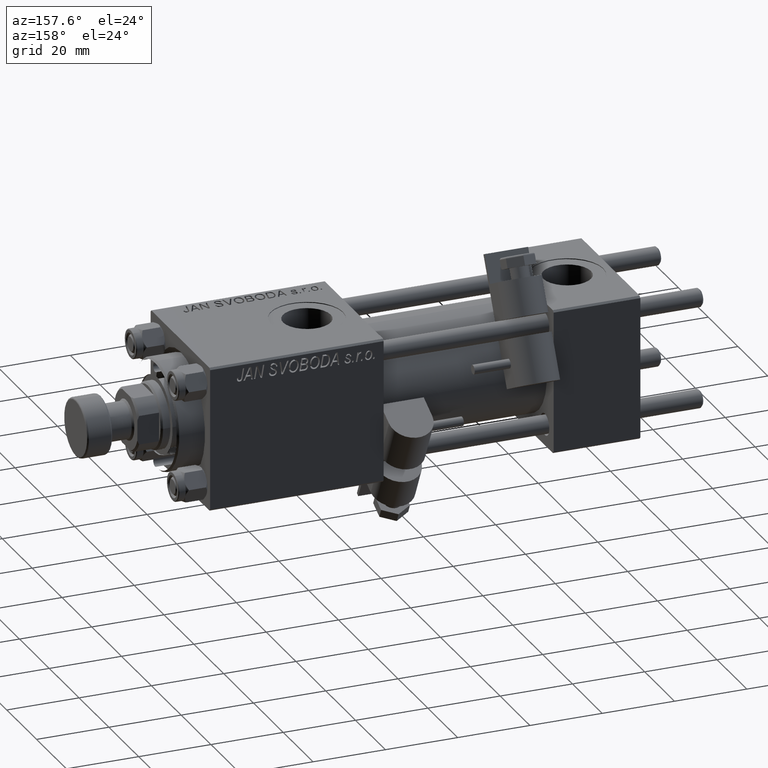
[diagram: clean part render]
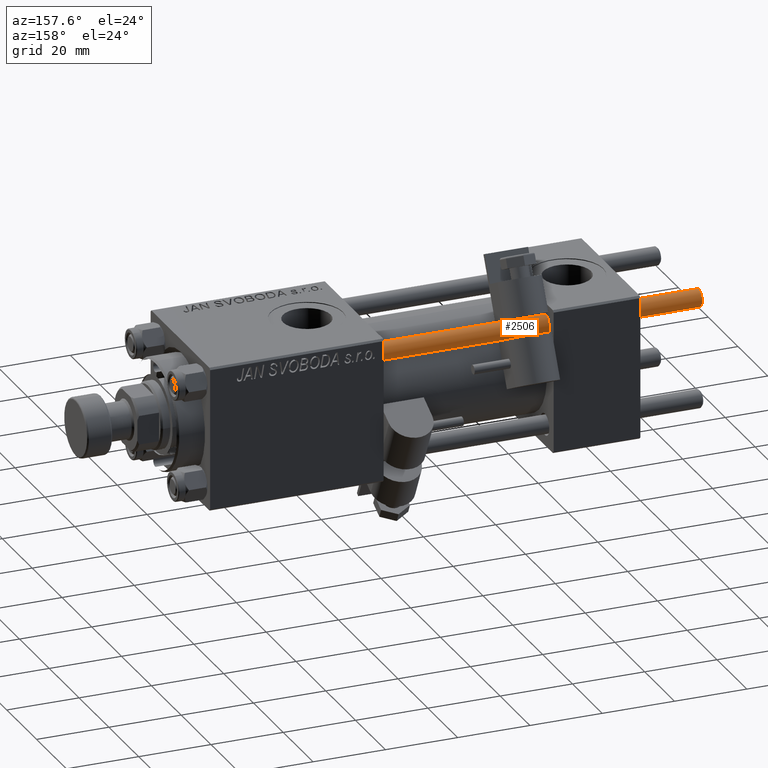
[diagram: same view with one face highlighted and labeled with its STEP entity id]
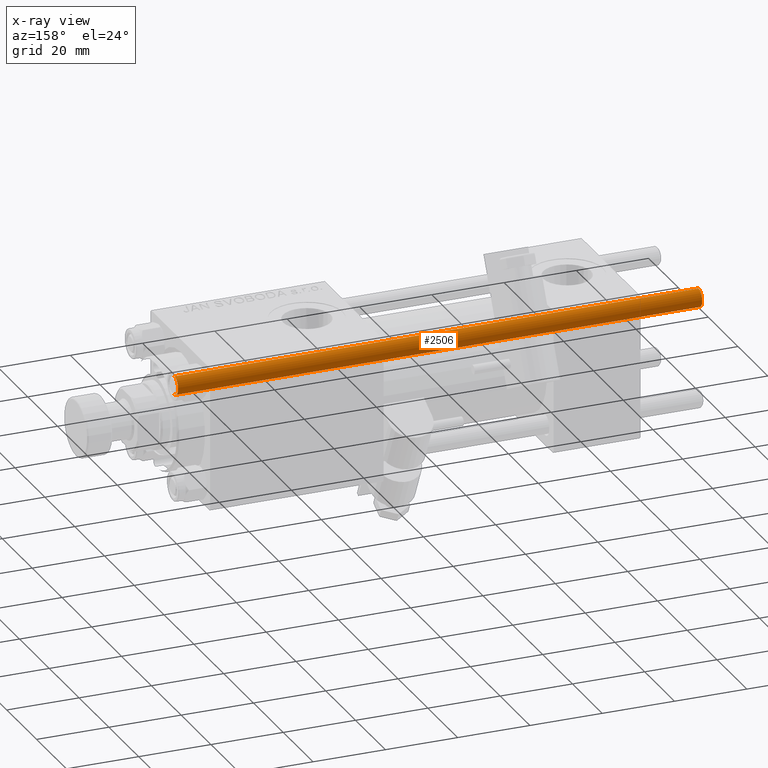
[diagram: x-ray of the same camera — body ghosted, the highlighted face saturated]
A machine part, auxiliary view. The second image highlights one B-rep face of the part: STEP entity #2506.
The next image is the same camera in x-ray: the body ghosted, the highlighted face saturated — about 0% of this face is hidden behind the body in this view.
In plain terms, the highlighted cylindrical surface (edge-blend (fillet) strip) has radius 2.5 mm, axis along (-1, -0, -0).
Its self-contained STEP definition (entity closure, byte-faithful):
#1775 = ORIENTED_EDGE ( 'NONE', *, *, #7352, .T. ) ;
#1818 = EDGE_LOOP ( 'NONE', ( #2456, #6672, #1775, #25253 ) ) ;
#1917 = CARTESIAN_POINT ( 'NONE',  ( 0.000000000000000000, 0.000000000000000000, 0.5000000000000559552 ) ) ;
#2456 = ORIENTED_EDGE ( 'NONE', *, *, #34851, .T. ) ;
#2506 = ADVANCED_FACE ( 'NONE', ( #23407 ), #7592, .T. ) ;
#3673 = CARTESIAN_POINT ( 'NONE',  ( 2.500000000000000000, 3.061616997868383141E-16, 145.5000000000000284 ) ) ;
#6672 = ORIENTED_EDGE ( 'NONE', *, *, #44932, .T. ) ;
#6867 = VERTEX_POINT ( 'NONE', #37430 ) ;
#7352 = EDGE_CURVE ( 'NONE', #6867, #52805, #51471, .T. ) ;
#7592 = CYLINDRICAL_SURFACE ( 'NONE', #7625, 2.500000000000000000 ) ;
#7625 = AXIS2_PLACEMENT_3D ( 'NONE', #31746, #8129, #36564 ) ;
#8129 = DIRECTION ( 'NONE',  ( -0.000000000000000000, -0.000000000000000000, -1.000000000000000000 ) ) ;
#10638 = CARTESIAN_POINT ( 'NONE',  ( -2.500000000000000000, 0.000000000000000000, 145.5000000000000284 ) ) ;
#11228 = EDGE_CURVE ( 'NONE', #52372, #52805, #38954, .T. ) ;
#13180 = DIRECTION ( 'NONE',  ( -0.000000000000000000, -0.000000000000000000, -1.000000000000000000 ) ) ;
#17217 = DIRECTION ( 'NONE',  ( 1.000000000000000000, 0.000000000000000000, 0.000000000000000000 ) ) ;
#21835 = CIRCLE ( 'NONE', #24406, 2.500000000000000000 ) ;
#23407 = FACE_OUTER_BOUND ( 'NONE', #1818, .T. ) ;
#24406 = AXIS2_PLACEMENT_3D ( 'NONE', #32962, #37519, #49866 ) ;
#25253 = ORIENTED_EDGE ( 'NONE', *, *, #11228, .F. ) ;
#27484 = AXIS2_PLACEMENT_3D ( 'NONE', #1917, #46719, #17217 ) ;
#31746 = CARTESIAN_POINT ( 'NONE',  ( 0.000000000000000000, 0.000000000000000000, 146.0000000000000000 ) ) ;
#32962 = CARTESIAN_POINT ( 'NONE',  ( 0.000000000000000000, 0.000000000000000000, 145.5000000000000284 ) ) ;
#34110 = CARTESIAN_POINT ( 'NONE',  ( 2.500000000000000000, 3.061616997868383141E-16, 146.0000000000000000 ) ) ;
#34407 = DIRECTION ( 'NONE',  ( -0.000000000000000000, -0.000000000000000000, -1.000000000000000000 ) ) ;
#34851 = EDGE_CURVE ( 'NONE', #52372, #49178, #21835, .T. ) ;
#36564 = DIRECTION ( 'NONE',  ( -1.000000000000000000, 0.000000000000000000, 0.000000000000000000 ) ) ;
#37399 = CARTESIAN_POINT ( 'NONE',  ( -2.500000000000000000, 0.000000000000000000, 0.5000000000000559552 ) ) ;
#37430 = CARTESIAN_POINT ( 'NONE',  ( 2.500000000000000000, 3.061616997868383141E-16, 0.5000000000000559552 ) ) ;
#37519 = DIRECTION ( 'NONE',  ( 0.000000000000000000, 0.000000000000000000, -1.000000000000000000 ) ) ;
#38954 = LINE ( 'NONE', #42983, #49788 ) ;
#42983 = CARTESIAN_POINT ( 'NONE',  ( -2.500000000000000000, 0.000000000000000000, 146.0000000000000000 ) ) ;
#44932 = EDGE_CURVE ( 'NONE', #49178, #6867, #49948, .T. ) ;
#46719 = DIRECTION ( 'NONE',  ( -0.000000000000000000, -0.000000000000000000, 1.000000000000000000 ) ) ;
#49178 = VERTEX_POINT ( 'NONE', #3673 ) ;
#49788 = VECTOR ( 'NONE', #34407, 1000.000000000000000 ) ;
#49866 = DIRECTION ( 'NONE',  ( 1.000000000000000000, 0.000000000000000000, 0.000000000000000000 ) ) ;
#49948 = LINE ( 'NONE', #34110, #52928 ) ;
#51471 = CIRCLE ( 'NONE', #27484, 2.500000000000000000 ) ;
#52372 = VERTEX_POINT ( 'NONE', #10638 ) ;
#52805 = VERTEX_POINT ( 'NONE', #37399 ) ;
#52928 = VECTOR ( 'NONE', #13180, 1000.000000000000000 ) ;